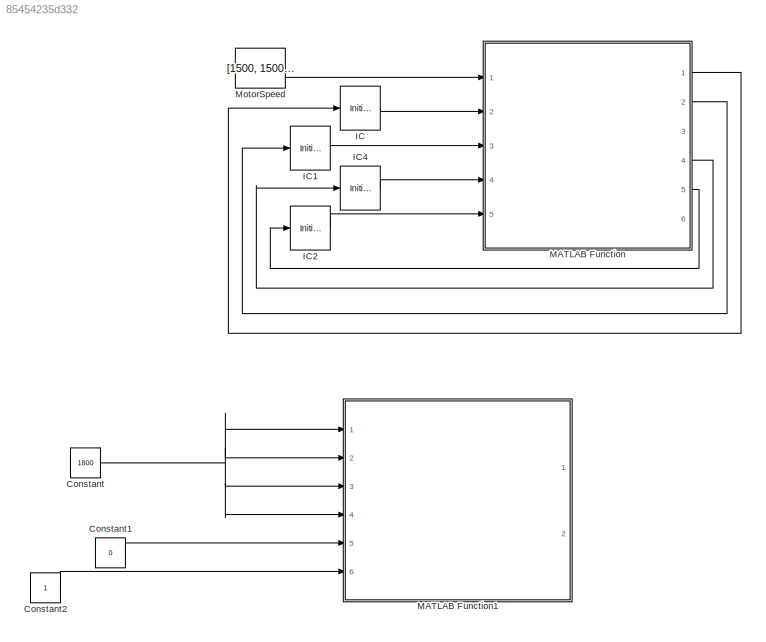
MODEL slx_85454235d332
KIND model
BLOCK [Constant] Constant
  Value = 1800
BLOCK [Constant] Constant1
  Value = 0
BLOCK [Constant] Constant2
BLOCK [InitialCondition] IC
  Commented = on
  Value = [0,0,0]
BLOCK [InitialCondition] IC1
  Commented = on
  Value = [0,0,0]
BLOCK [InitialCondition] IC2
  Commented = on
  Value = [0,0,0]
BLOCK [InitialCondition] IC4
  Commented = on
  Value = [0,0,0]
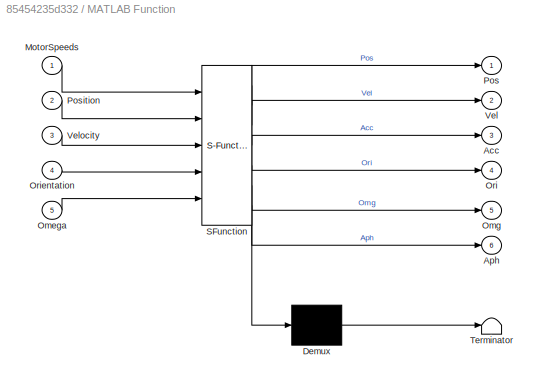
BLOCK [SubSystem] MATLAB Function
  Commented = on
  ErrorFcn = Stateflow.Translate.translate
  FunctionWithSeparateData = off
  MaskHideContents = off
  MinAlgLoopOccurrences = off
  Opaque = off
  PermitHierarchicalResolution = ExplicitOnly
  Ports = [5, 6]
  PropExecContextOutsideSubsystem = off
  RTWSystemCode = Auto
  RequestExecContextInheritance = off
  SFBlockType = MATLAB Function
  TreatAsAtomicUnit = on
BLOCK [Demux] MATLAB Function/ Demux 
  Outputs = 1
  Ports = [1, 1]
BLOCK [S-Function] MATLAB Function/ SFunction 
  EnableBusSupport = on
  FunctionName = sf_sfun
  PortCounts = [5 7]
  Ports = [5, 7]
  Tag = Stateflow S-Function test 2
BLOCK [Terminator] MATLAB Function/ Terminator 
BLOCK [Outport] MATLAB Function/Acc
  IconDisplay = Port number
  Port = 3
BLOCK [Outport] MATLAB Function/Aph
  IconDisplay = Port number
  Port = 6
BLOCK [Inport] MATLAB Function/MotorSpeeds
  IconDisplay = Port number
BLOCK [Inport] MATLAB Function/Omega
  IconDisplay = Port number
  Port = 5
BLOCK [Outport] MATLAB Function/Omg
  IconDisplay = Port number
  Port = 5
BLOCK [Outport] MATLAB Function/Ori
  IconDisplay = Port number
  Port = 4
BLOCK [Inport] MATLAB Function/Orientation
  IconDisplay = Port number
  Port = 4
BLOCK [Outport] MATLAB Function/Pos
  IconDisplay = Port number
BLOCK [Inport] MATLAB Function/Position
  IconDisplay = Port number
  Port = 2
BLOCK [Outport] MATLAB Function/Vel
  IconDisplay = Port number
  Port = 2
BLOCK [Inport] MATLAB Function/Velocity
  IconDisplay = Port number
  Port = 3
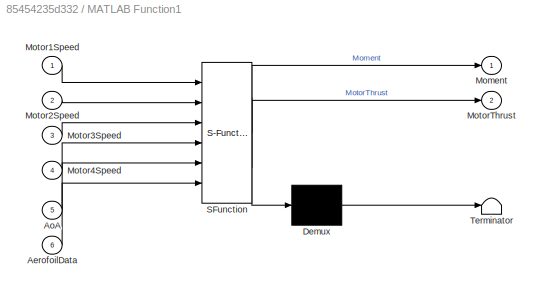
BLOCK [SubSystem] MATLAB Function1
  ErrorFcn = Stateflow.Translate.translate
  FunctionWithSeparateData = off
  MaskHideContents = off
  MinAlgLoopOccurrences = off
  Opaque = off
  PermitHierarchicalResolution = ExplicitOnly
  Ports = [6, 2]
  PropExecContextOutsideSubsystem = off
  RTWSystemCode = Auto
  RequestExecContextInheritance = off
  SFBlockType = MATLAB Function
  TreatAsAtomicUnit = on
BLOCK [Demux] MATLAB Function1/ Demux 
  Outputs = 1
  Ports = [1, 1]
BLOCK [S-Function] MATLAB Function1/ SFunction 
  EnableBusSupport = on
  FunctionName = sf_sfun
  PortCounts = [6 3]
  Ports = [6, 3]
  Tag = Stateflow S-Function test 1
BLOCK [Terminator] MATLAB Function1/ Terminator 
BLOCK [Inport] MATLAB Function1/AerofoilData
  IconDisplay = Port number
  Port = 6
BLOCK [Inport] MATLAB Function1/AoA
  IconDisplay = Port number
  Port = 5
BLOCK [Outport] MATLAB Function1/Moment
  IconDisplay = Port number
BLOCK [Inport] MATLAB Function1/Motor1Speed
  IconDisplay = Port number
BLOCK [Inport] MATLAB Function1/Motor2Speed
  IconDisplay = Port number
  Port = 2
BLOCK [Inport] MATLAB Function1/Motor3Speed
  IconDisplay = Port number
  Port = 3
BLOCK [Inport] MATLAB Function1/Motor4Speed
  IconDisplay = Port number
  Port = 4
BLOCK [Outport] MATLAB Function1/MotorThrust
  IconDisplay = Port number
  Port = 2
BLOCK [Constant] MotorSpeed
  Commented = on
  Value = [1500, 1500, 1500, 1500]
  VectorParams1D = off
LINE Constant1:1 -> MATLAB Function1:5
LINE Constant2:1 -> MATLAB Function1:6
NET Constant:1 -> MATLAB Function1:1, MATLAB Function1:2, MATLAB Function1:3, MATLAB Function1:4
LINE IC1:1 -> MATLAB Function:3
LINE IC2:1 -> MATLAB Function:5
LINE IC4:1 -> MATLAB Function:4
LINE IC:1 -> MATLAB Function:2
LINE MATLAB Function:1 -> IC:1
LINE MATLAB Function:2 -> IC1:1
LINE MATLAB Function:4 -> IC4:1
LINE MATLAB Function:5 -> IC2:1
LINE MotorSpeed:1 -> MATLAB Function:1
note: NET lines group one-source signal fan-out (src -> all destinations, sorted); 1:1 wires keep LINE
